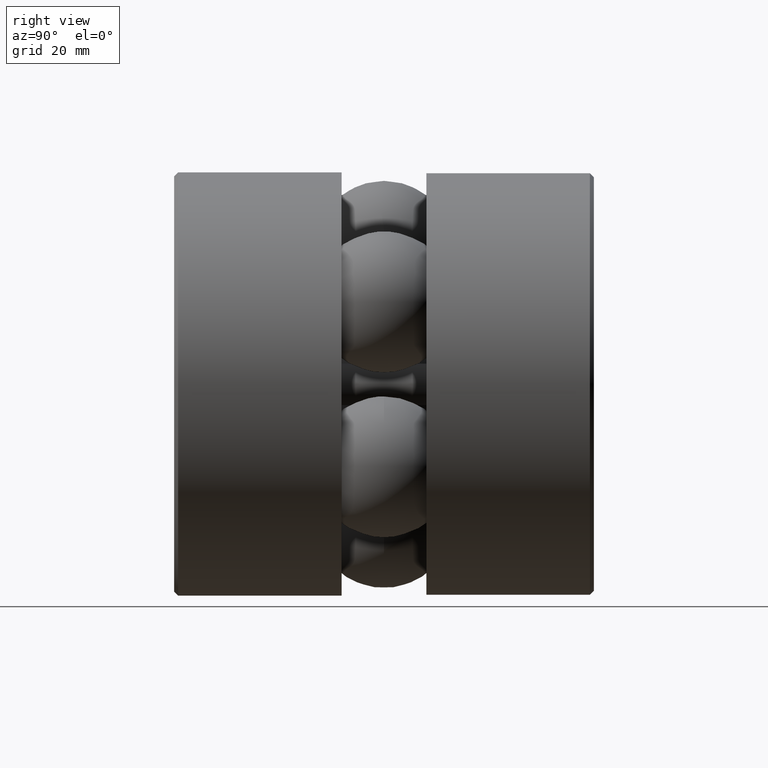
[diagram: clean part render]
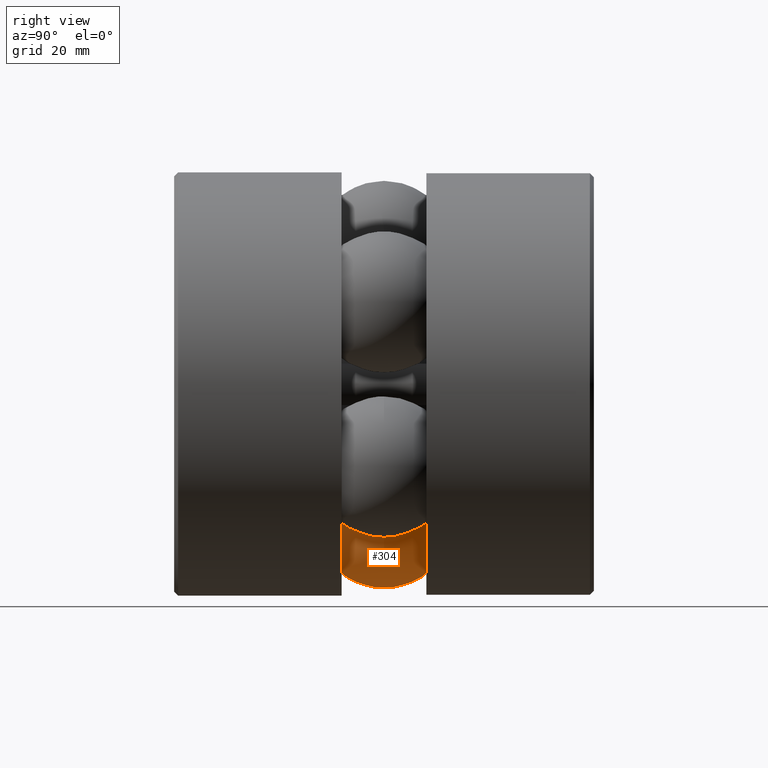
[diagram: same view with one face highlighted and labeled with its STEP entity id]
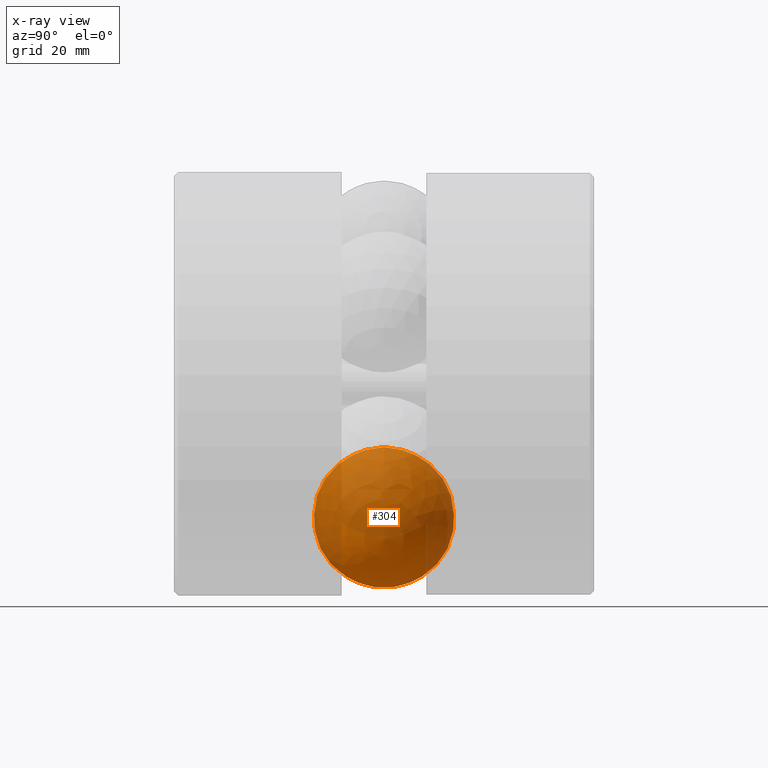
[diagram: x-ray of the same camera — body ghosted, the highlighted face saturated]
A machine part, right view. The second image highlights one B-rep face of the part: STEP entity #304.
The next image is the same camera in x-ray: the body ghosted, the highlighted face saturated — about 72% of this face is hidden behind the body in this view.
In plain terms, the highlighted spherical surface has radius 13.4874 mm.
Its self-contained STEP definition (entity closure, byte-faithful):
#245 = DIRECTION ( 'NONE',  ( 0.3090169943749582200, 0.0000000000000000000, 0.9510565162951500900 ) ) ;
#257 = AXIS2_PLACEMENT_3D ( 'NONE', #281, #279, #245 ) ;
#279 = DIRECTION ( 'NONE',  ( 0.9510565162951500900, 0.0000000000000000000, -0.3090169943749582200 ) ) ;
#281 = CARTESIAN_POINT ( 'NONE',  ( -0.3257039120712059700, 1.577999999999999800, -1.002413568175088100 ) ) ;
#304 = ADVANCED_FACE ( 'NONE', ( ), #542, .T. ) ;
#542 = SPHERICAL_SURFACE ( 'NONE', #257, 0.5309999999999999200 ) ;